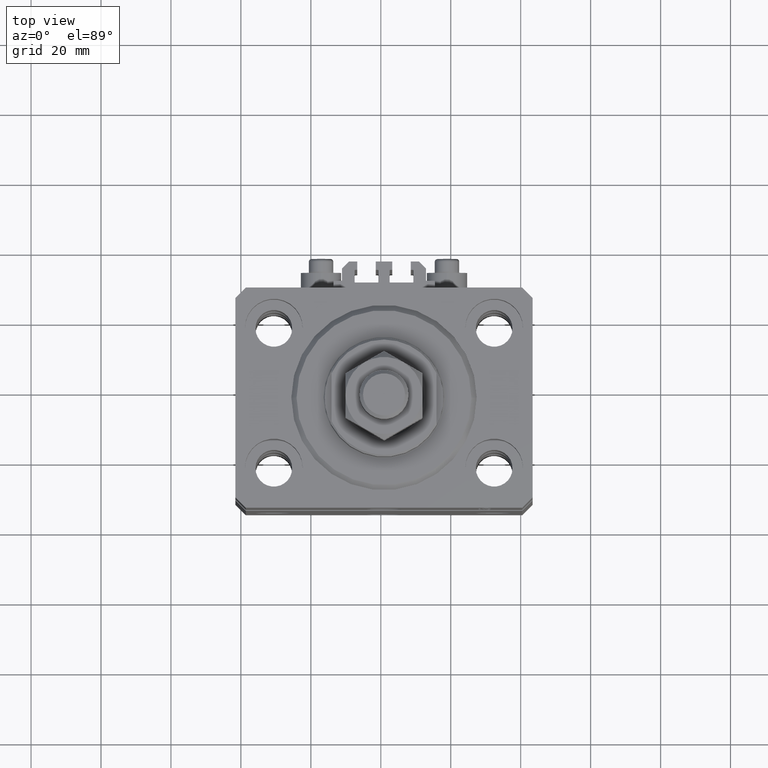
[diagram: clean part render]
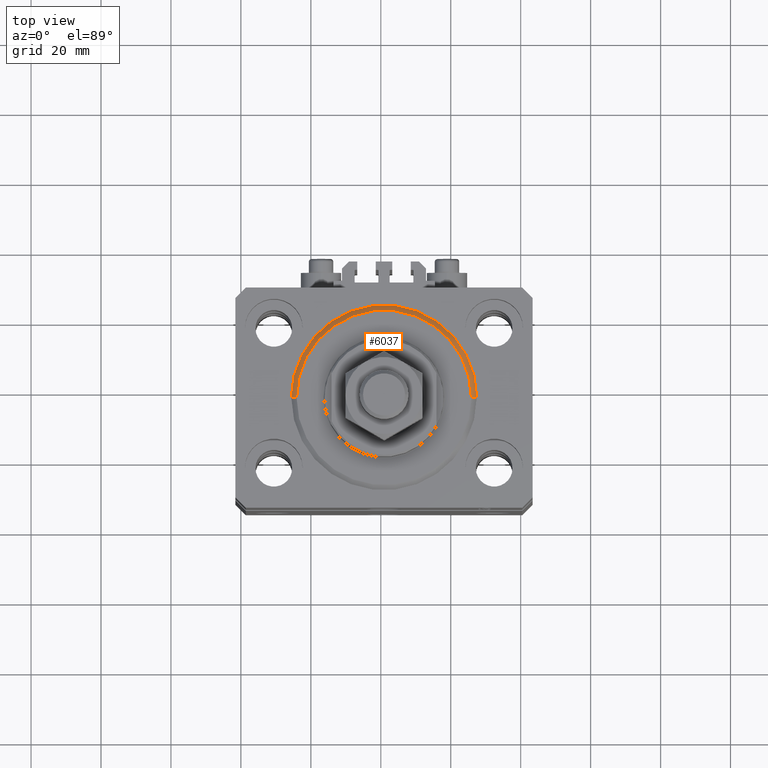
[diagram: same view with one face highlighted and labeled with its STEP entity id]
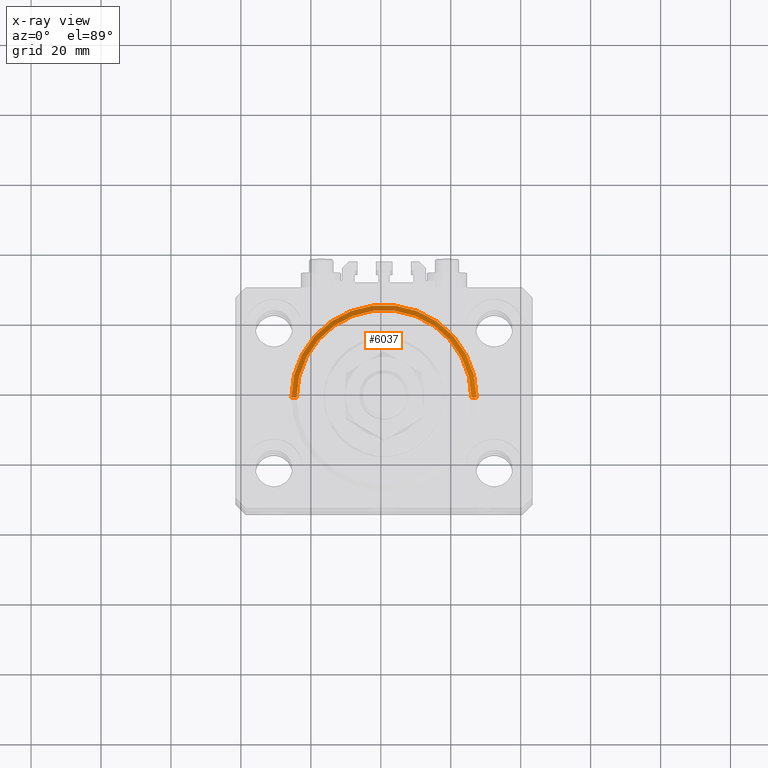
[diagram: x-ray of the same camera — body ghosted, the highlighted face saturated]
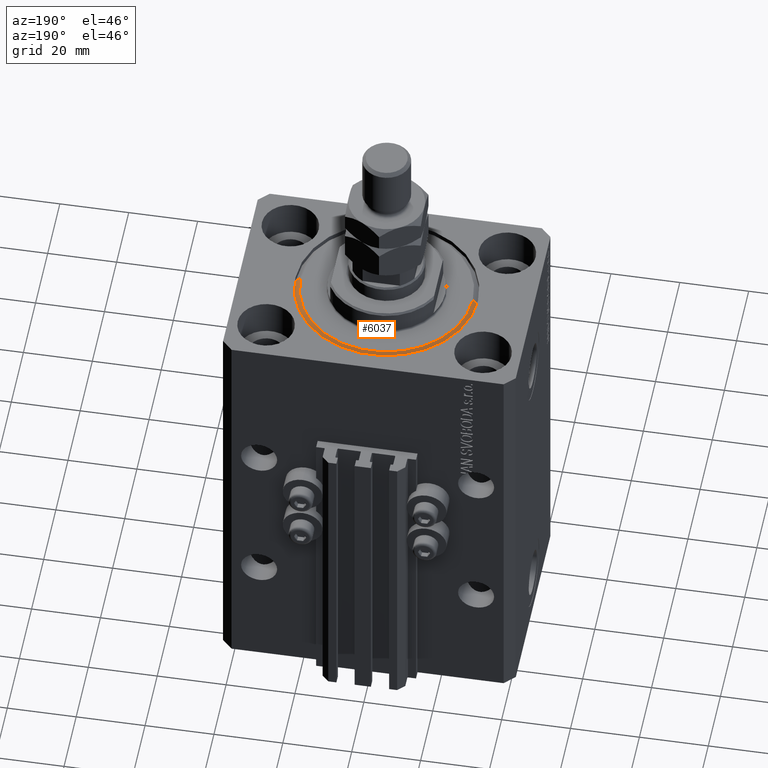
[diagram: same view with one face highlighted and labeled with its STEP entity id]
A machine part, top view. The second image highlights one B-rep face of the part: STEP entity #6037.
The next image is the same camera in x-ray: the body ghosted, the highlighted face saturated — about 0% of this face is hidden behind the body in this view.
A second angle (auxiliary view) of the same face is appended — the face is thin or edge-on in the first view.
In plain terms, the highlighted conical surface has half-angle 45 deg.
Its self-contained STEP definition (entity closure, byte-faithful):
#214 = CARTESIAN_POINT ( 'NONE',  ( -26.50000000000000355, 3.245314017740486554E-15, 1.500000000000018652 ) ) ;
#1580 = ORIENTED_EDGE ( 'NONE', *, *, #24727, .F. ) ;
#1849 = CIRCLE ( 'NONE', #36723, 26.50000000000000355 ) ;
#4036 = DIRECTION ( 'NONE',  ( 1.000000000000000000, 0.000000000000000000, 0.000000000000000000 ) ) ;
#4082 = CARTESIAN_POINT ( 'NONE',  ( 26.50000000000000355, 0.000000000000000000, 1.500000000000018652 ) ) ;
#6037 = ADVANCED_FACE ( 'NONE', ( #44866 ), #48396, .T. ) ;
#6274 = CARTESIAN_POINT ( 'NONE',  ( -24.99999999999998224, 3.153465507804433615E-15, 0.000000000000000000 ) ) ;
#7043 = ORIENTED_EDGE ( 'NONE', *, *, #30705, .F. ) ;
#7411 = DIRECTION ( 'NONE',  ( 0.7071067811865483499, 0.000000000000000000, 0.7071067811865466846 ) ) ;
#10019 = CARTESIAN_POINT ( 'NONE',  ( 24.99999999999998224, 0.000000000000000000, 0.000000000000000000 ) ) ;
#10088 = DIRECTION ( 'NONE',  ( 1.000000000000000000, 0.000000000000000000, 0.000000000000000000 ) ) ;
#11131 = EDGE_LOOP ( 'NONE', ( #1580, #39023, #28811, #7043 ) ) ;
#11907 = AXIS2_PLACEMENT_3D ( 'NONE', #40549, #14148, #10088 ) ;
#11912 = CIRCLE ( 'NONE', #32191, 24.99999999999998224 ) ;
#12031 = VECTOR ( 'NONE', #7411, 1000.000000000000000 ) ;
#13677 = VERTEX_POINT ( 'NONE', #45377 ) ;
#14148 = DIRECTION ( 'NONE',  ( -0.000000000000000000, -0.000000000000000000, 1.000000000000000000 ) ) ;
#15727 = DIRECTION ( 'NONE',  ( -0.7071067811865483499, 8.659560562354942719E-17, 0.7071067811865466846 ) ) ;
#17305 = DIRECTION ( 'NONE',  ( -0.000000000000000000, -0.000000000000000000, -1.000000000000000000 ) ) ;
#23607 = DIRECTION ( 'NONE',  ( -0.000000000000000000, -0.000000000000000000, 1.000000000000000000 ) ) ;
#24727 = EDGE_CURVE ( 'NONE', #28742, #30301, #11912, .T. ) ;
#27445 = CARTESIAN_POINT ( 'NONE',  ( 26.50000000000000355, 3.245314017740486554E-15, 1.500000000000018652 ) ) ;
#28724 = DIRECTION ( 'NONE',  ( 1.000000000000000000, 0.000000000000000000, 0.000000000000000000 ) ) ;
#28742 = VERTEX_POINT ( 'NONE', #6274 ) ;
#28811 = ORIENTED_EDGE ( 'NONE', *, *, #41664, .F. ) ;
#30301 = VERTEX_POINT ( 'NONE', #10019 ) ;
#30705 = EDGE_CURVE ( 'NONE', #30301, #34522, #42923, .T. ) ;
#32191 = AXIS2_PLACEMENT_3D ( 'NONE', #33266, #17305, #28724 ) ;
#33266 = CARTESIAN_POINT ( 'NONE',  ( 0.000000000000000000, 0.000000000000000000, 0.000000000000000000 ) ) ;
#34522 = VERTEX_POINT ( 'NONE', #27445 ) ;
#35206 = EDGE_CURVE ( 'NONE', #28742, #13677, #47190, .T. ) ;
#36517 = VECTOR ( 'NONE', #15727, 1000.000000000000000 ) ;
#36723 = AXIS2_PLACEMENT_3D ( 'NONE', #43382, #23607, #4036 ) ;
#39023 = ORIENTED_EDGE ( 'NONE', *, *, #35206, .T. ) ;
#40549 = CARTESIAN_POINT ( 'NONE',  ( 0.000000000000000000, 0.000000000000000000, 1.500000000000018652 ) ) ;
#41664 = EDGE_CURVE ( 'NONE', #34522, #13677, #1849, .T. ) ;
#42923 = LINE ( 'NONE', #4082, #12031 ) ;
#43382 = CARTESIAN_POINT ( 'NONE',  ( 0.000000000000000000, 0.000000000000000000, 1.500000000000018652 ) ) ;
#44866 = FACE_OUTER_BOUND ( 'NONE', #11131, .T. ) ;
#45377 = CARTESIAN_POINT ( 'NONE',  ( -26.50000000000000355, 0.000000000000000000, 1.500000000000018652 ) ) ;
#47190 = LINE ( 'NONE', #214, #36517 ) ;
#48396 = CONICAL_SURFACE ( 'NONE', #11907, 26.50000000000000355, 0.7853981633974495002 ) ;